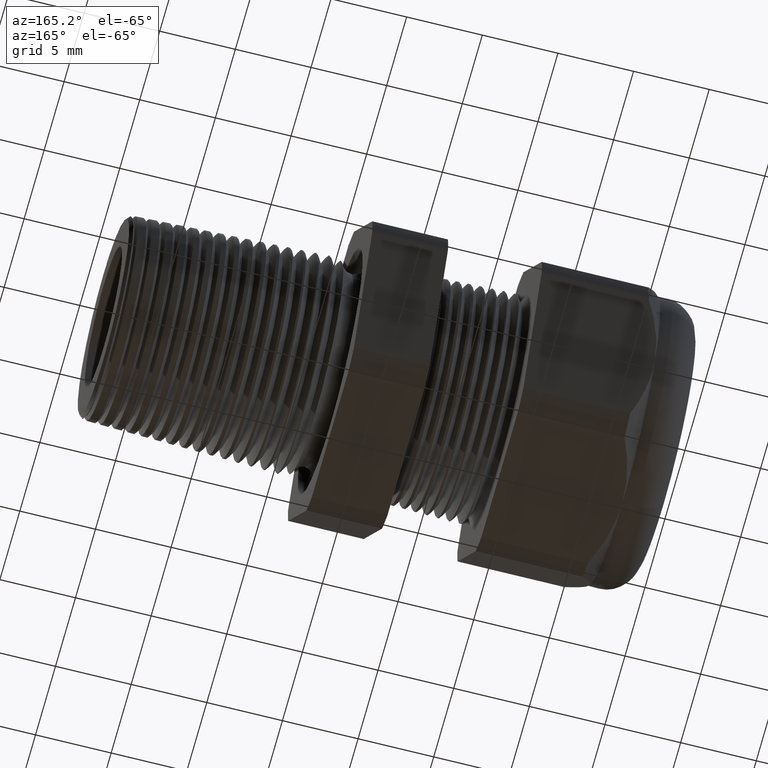
[diagram: clean part render]
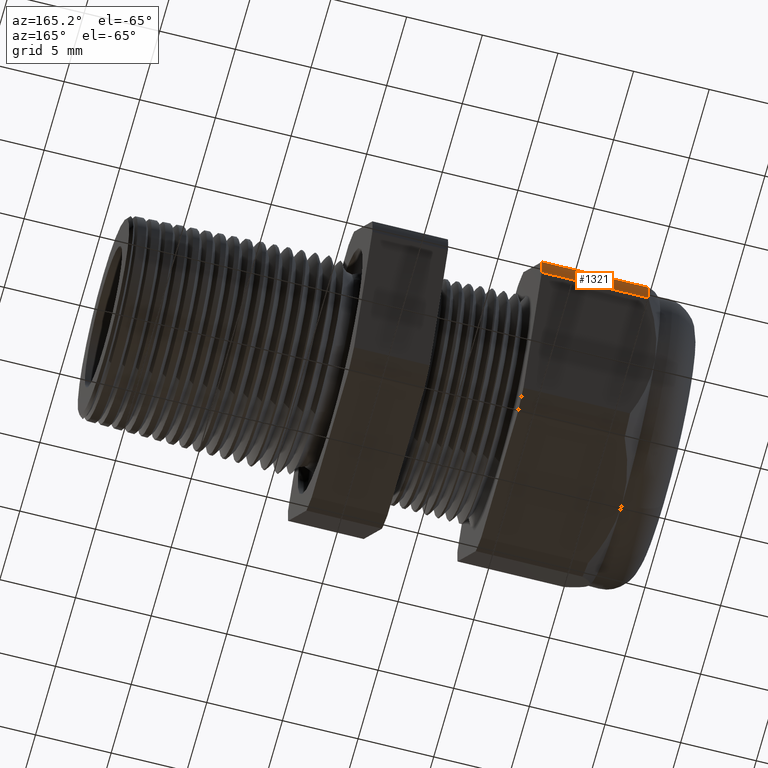
[diagram: same view with one face highlighted and labeled with its STEP entity id]
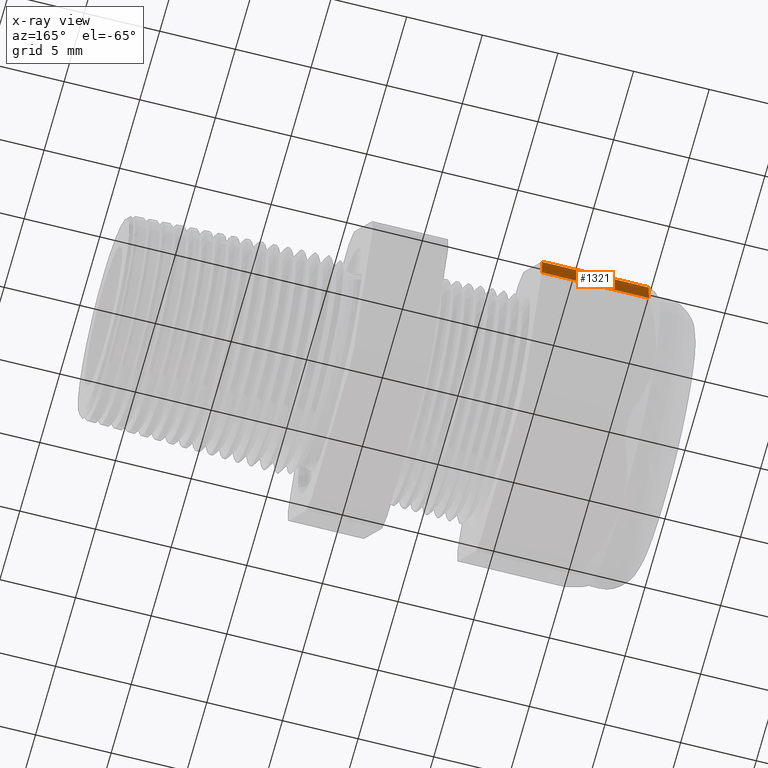
[diagram: x-ray of the same camera — body ghosted, the highlighted face saturated]
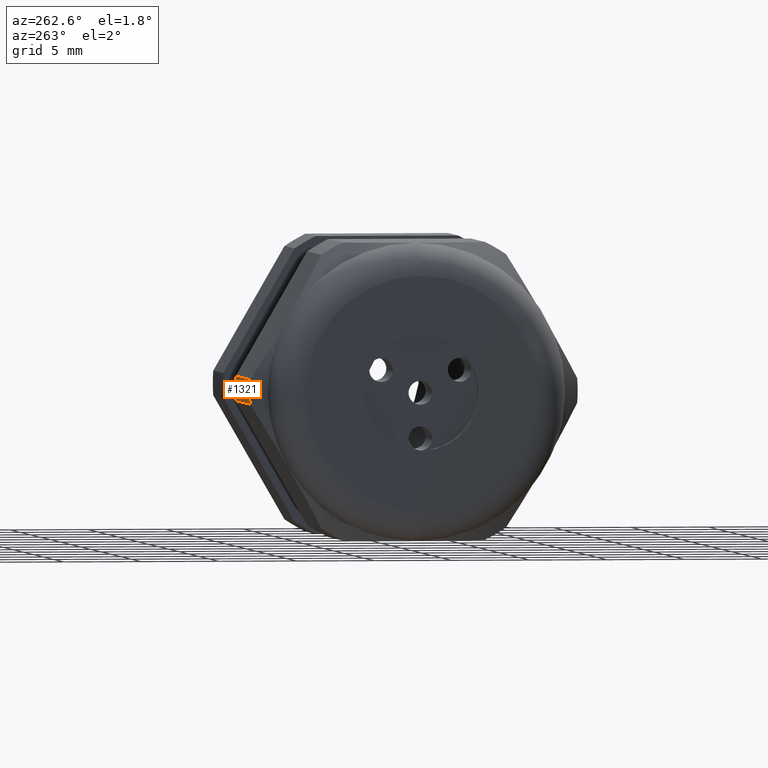
[diagram: same view with one face highlighted and labeled with its STEP entity id]
A machine part, auxiliary view. The second image highlights one B-rep face of the part: STEP entity #1321.
The next image is the same camera in x-ray: the body ghosted, the highlighted face saturated — about 0% of this face is hidden behind the body in this view.
A second angle (auxiliary view) of the same face is appended — the face is thin or edge-on in the first view.
In plain terms, the highlighted cylindrical surface (partial cylindrical patch) has radius 10.5727 mm, axis along (-1, 0, 0).
Its self-contained STEP definition (entity closure, byte-faithful):
#1200 = EDGE_CURVE ( 'NONE', #1201, #1226, #4305, .T. ) ;
#1201 = VERTEX_POINT ( 'NONE', #4301 ) ;
#1226 = VERTEX_POINT ( 'NONE', #4316 ) ;
#1321 = ADVANCED_FACE ( 'NONE', ( #4544 ), #4542, .T. ) ;
#1322 = EDGE_LOOP ( 'NONE', ( #1323, #1324, #1326, #1327 ) ) ;
#1323 = ORIENTED_EDGE ( 'NONE', *, *, #1200, .T. ) ;
#1324 = ORIENTED_EDGE ( 'NONE', *, *, #1325, .T. ) ;
#1325 = EDGE_CURVE ( 'NONE', #1226, #1340, #4537, .T. ) ;
#1326 = ORIENTED_EDGE ( 'NONE', *, *, #1338, .F. ) ;
#1327 = ORIENTED_EDGE ( 'NONE', *, *, #1328, .F. ) ;
#1328 = EDGE_CURVE ( 'NONE', #1201, #1339, #4533, .T. ) ;
#1338 = EDGE_CURVE ( 'NONE', #1339, #1340, #4567, .T. ) ;
#1339 = VERTEX_POINT ( 'NONE', #4563 ) ;
#1340 = VERTEX_POINT ( 'NONE', #4562 ) ;
#4301 = CARTESIAN_POINT ( 'NONE',  ( -0.7508661417322833900, 0.4150909474475088000, -0.03104138925901209900 ) ) ;
#4302 = DIRECTION ( 'NONE',  ( -1.000000000000000000, 0.0000000000000000000, 0.0000000000000000000 ) ) ;
#4303 = VECTOR ( 'NONE', #4302, 39.37007874015748100 ) ;
#4304 = CARTESIAN_POINT ( 'NONE',  ( 0.2800000000000000300, 0.4150909474475088000, -0.03104138925901209900 ) ) ;
#4305 = LINE ( 'NONE', #4304, #4303 ) ;
#4316 = CARTESIAN_POINT ( 'NONE',  ( -1.028513779527559000, 0.4150909474475088000, -0.03104138925901209900 ) ) ;
#4529 = DIRECTION ( 'NONE',  ( 0.0000000000000000000, 0.0000000000000000000, -1.000000000000000000 ) ) ;
#4530 = DIRECTION ( 'NONE',  ( 1.000000000000000000, 0.0000000000000000000, 0.0000000000000000000 ) ) ;
#4531 = CARTESIAN_POINT ( 'NONE',  ( -0.7508661417322833900, 0.0000000000000000000, 0.0000000000000000000 ) ) ;
#4532 = AXIS2_PLACEMENT_3D ( 'NONE', #4531, #4530, #4529 ) ;
#4533 = CIRCLE ( 'NONE', #4532, 0.4162500000000000100 ) ;
#4534 = DIRECTION ( 'NONE',  ( 0.0000000000000000000, 0.0000000000000000000, -1.000000000000000000 ) ) ;
#4535 = DIRECTION ( 'NONE',  ( 1.000000000000000000, 0.0000000000000000000, 0.0000000000000000000 ) ) ;
#4536 = AXIS2_PLACEMENT_3D ( 'NONE', #4543, #4535, #4534 ) ;
#4537 = CIRCLE ( 'NONE', #4536, 0.4162500000000000100 ) ;
#4538 = DIRECTION ( 'NONE',  ( 0.0000000000000000000, 0.0000000000000000000, 1.000000000000000000 ) ) ;
#4539 = DIRECTION ( 'NONE',  ( -1.000000000000000000, 0.0000000000000000000, 0.0000000000000000000 ) ) ;
#4540 = CARTESIAN_POINT ( 'NONE',  ( 0.2800000000000000300, 0.0000000000000000000, 0.0000000000000000000 ) ) ;
#4541 = AXIS2_PLACEMENT_3D ( 'NONE', #4540, #4539, #4538 ) ;
#4542 = CYLINDRICAL_SURFACE ( 'NONE', #4541, 0.4162500000000000100 ) ;
#4543 = CARTESIAN_POINT ( 'NONE',  ( -1.028513779527559000, 0.0000000000000000000, 0.0000000000000000000 ) ) ;
#4544 = FACE_OUTER_BOUND ( 'NONE', #1322, .T. ) ;
#4562 = CARTESIAN_POINT ( 'NONE',  ( -1.028513779527559000, 0.4150909474475088000, 0.03104138925901233800 ) ) ;
#4563 = CARTESIAN_POINT ( 'NONE',  ( -0.7508661417322833900, 0.4150909474475088000, 0.03104138925901233800 ) ) ;
#4564 = DIRECTION ( 'NONE',  ( -1.000000000000000000, 0.0000000000000000000, 0.0000000000000000000 ) ) ;
#4565 = VECTOR ( 'NONE', #4564, 39.37007874015748100 ) ;
#4566 = CARTESIAN_POINT ( 'NONE',  ( 0.2800000000000000300, 0.4150909474475088000, 0.03104138925901233800 ) ) ;
#4567 = LINE ( 'NONE', #4566, #4565 ) ;